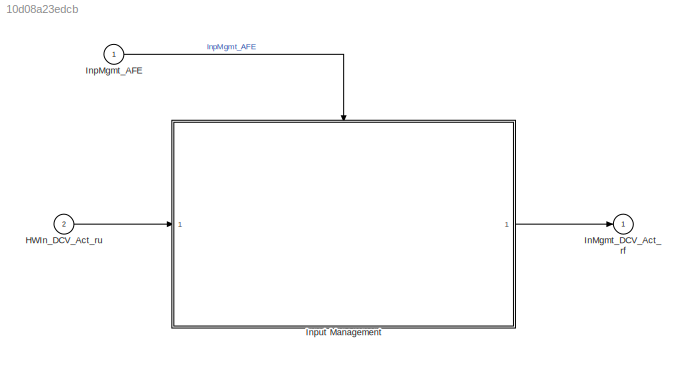
MODEL slx_10d08a23edcb
KIND model
BLOCK [Inport] HWIn_DCV_Act_ru
  OutDataTypeStr = uint16
  Port = 2
BLOCK [Outport] InMgmt_DCV_Act_rf
  OutDataTypeStr = single
  VectorParamsAs1DForOutWhenUnconnected = off
BLOCK [Inport] InpMgmt_AFE
  Description = Inverter HVDC voltage
  OutMax = 1000
  OutMin = 0
  OutputFunctionCall = on
  PortDimensions = 1
  SampleTime = 2.5e-5
  SamplingMode = Sample based
  SignalType = real
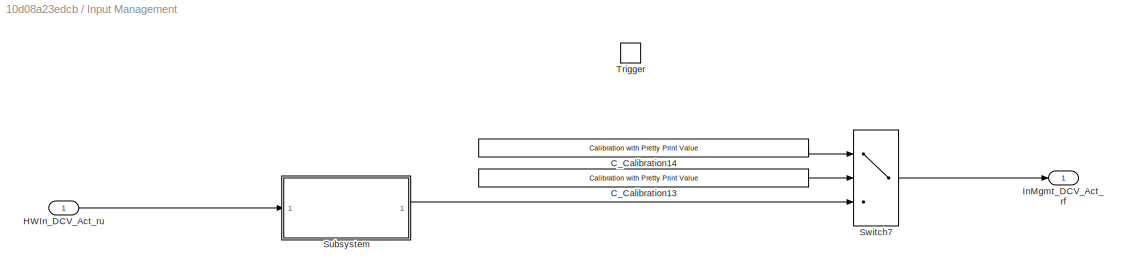
BLOCK [SubSystem] Input Management
BLOCK [Reference] Input Management/C_Calibration13  REF=common_lib/IO/Calibration with Pretty
Print Value
  SourceBlock = common_lib/IO/Calibration with Pretty\nPrint Value
  SourceProductName = Common Library Blocks
  SourceType = Calibratible Input
BLOCK [Reference] Input Management/C_Calibration14  REF=common_lib/IO/Calibration with Pretty
Print Value
  SourceBlock = common_lib/IO/Calibration with Pretty\nPrint Value
  SourceProductName = Common Library Blocks
  SourceType = Calibratible Input
BLOCK [Inport] Input Management/HWIn_DCV_Act_ru
BLOCK [Outport] Input Management/InMgmt_DCV_Act_rf
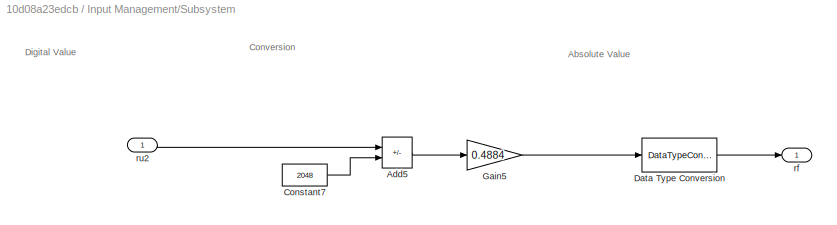
BLOCK [SubSystem] Input Management/Subsystem
BLOCK [Sum] Input Management/Subsystem/Add5
  IconShape = rectangular
  Inputs = +-
  OutDataTypeStr = uint16
BLOCK [Constant] Input Management/Subsystem/Constant7
  OutDataTypeStr = uint16
  Value = 2048
BLOCK [DataTypeConversion] Input Management/Subsystem/Data Type Conversion
  OutDataTypeStr = single
  RndMeth = Floor
  SaturateOnIntegerOverflow = off
BLOCK [Gain] Input Management/Subsystem/Gain5
  Gain = 0.4884
  OutDataTypeStr = uint16
BLOCK [Outport] Input Management/Subsystem/rf
BLOCK [Inport] Input Management/Subsystem/ru2
BLOCK [Switch] Input Management/Switch7
  Criteria = u2 ~= 0
  InputSameDT = off
  SaturateOnIntegerOverflow = off
BLOCK [TriggerPort] Input Management/Trigger
  PortDimensions = 1
  SampleTime = -1
  SampleTimeType = periodic
  StatesWhenEnabling = held
  TriggerType = function-call
  VariantControl = (inherit)
ANNOTATION Input Management/Subsystem: Absolute Value
ANNOTATION Input Management/Subsystem: Conversion
ANNOTATION Input Management/Subsystem: Digital Value
LINE HWIn_DCV_Act_ru:1 -> Input Management:1
LINE InpMgmt_AFE:1 -> Input Management:trigger
LINE Input Management/C_Calibration13:1 -> Input Management/Switch7:2
LINE Input Management/C_Calibration14:1 -> Input Management/Switch7:1
LINE Input Management/HWIn_DCV_Act_ru:1 -> Input Management/Subsystem:1
LINE Input Management/Subsystem/Add5:1 -> Input Management/Subsystem/Gain5:1
LINE Input Management/Subsystem/Constant7:1 -> Input Management/Subsystem/Add5:2
LINE Input Management/Subsystem/Data Type Conversion:1 -> Input Management/Subsystem/rf:1
LINE Input Management/Subsystem/Gain5:1 -> Input Management/Subsystem/Data Type Conversion:1
LINE Input Management/Subsystem/ru2:1 -> Input Management/Subsystem/Add5:1
LINE Input Management/Subsystem:1 -> Input Management/Switch7:3
LINE Input Management/Switch7:1 -> Input Management/InMgmt_DCV_Act_rf:1
LINE Input Management:1 -> InMgmt_DCV_Act_rf:1
CHART Test Sequence states=4 transitions=4
  STATE_LABEL "InMgmt_AFE_INIT\ncoder.extrinsic('assignin');\ncoder.extrinsic('getSection');\ncoder.extrinsic('set_param');\ncoder.extrinsic('get_param');\ncoder.extrinsic('Simulink.data.dictionary.open');\ncoder.extrinsic('discardChanges');\nSWCDictonary = Simulink.data.dictionary.open('SWC_InpMgmt_AFE.sldd');\nmodelData = getSection(SWCDictonary,'Design Data');\nmodelWorkSpace = get_param('SWC_InpMgmt_AFE','ModelWorksp...<+69ch>"
  STATE_LABEL 'InMgmt_AFE_INIT_SetValues\nHWIn_DCV_Act_ru=uint16(2149);'
  STATE_LABEL "InMgmt_AFE_INIT_VerifyOutputs\nHWIn_DCV_Act_ru=uint16(2149);\nverify(InMgmt_DCV_Act_rf==uint16(49),'TestCase:InMgmt_AFE_INIT_VerifyOutputs_Verify1','Current Output Value:InMgmt_DCV_Act_rf = %d',single(InMgmt_DCV_Act_rf));\nendTest = true;"
  STATE_LABEL '[\nafter(400,msec)\n]'
  STATE_LABEL 'InMgmt_AFE_INIT_SetValues\nHWIn_DCV_Act_ru=uint16(2149);'
  STATE_LABEL "InMgmt_AFE_INIT_VerifyOutputs\nHWIn_DCV_Act_ru=uint16(2149);\nverify(InMgmt_DCV_Act_rf==uint16(49),'TestCase:InMgmt_AFE_INIT_VerifyOutputs_Verify1','Current Output Value:InMgmt_DCV_Act_rf = %d',single(InMgmt_DCV_Act_rf));\nendTest = true;"
  STATE_LABEL "Terminate\nendTest = false;\ndiscardChanges(SWCDictonary);\nset_param('InpMgmt_AFE','SimulationCommand','stop');"
